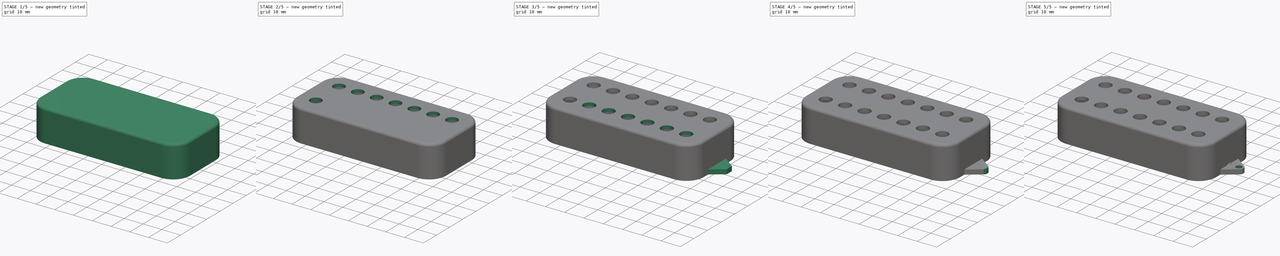
[diagram: build sequence overview — one tinted view per stage of 5, left to right]
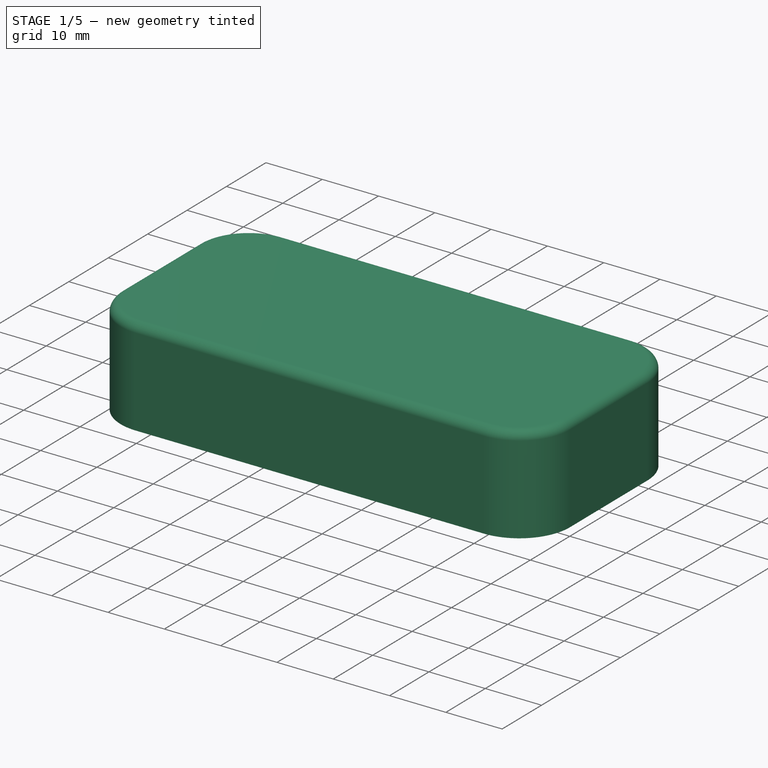
[diagram: stage 1 of 5 — iso view after this stage's code; geometry added in this stage tinted green]
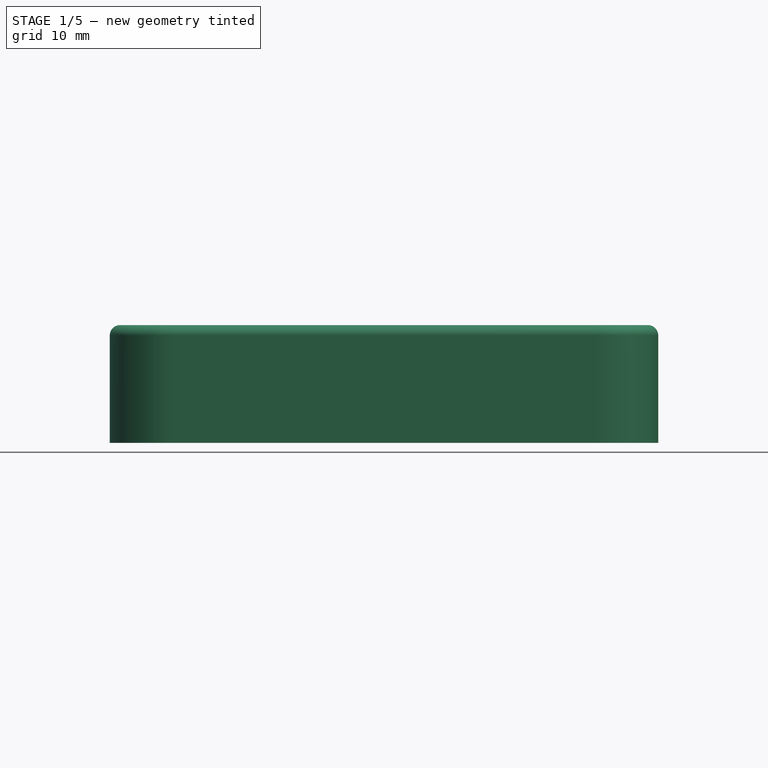
[diagram: stage 1 of 5 — front view after this stage's code; geometry added in this stage tinted green]
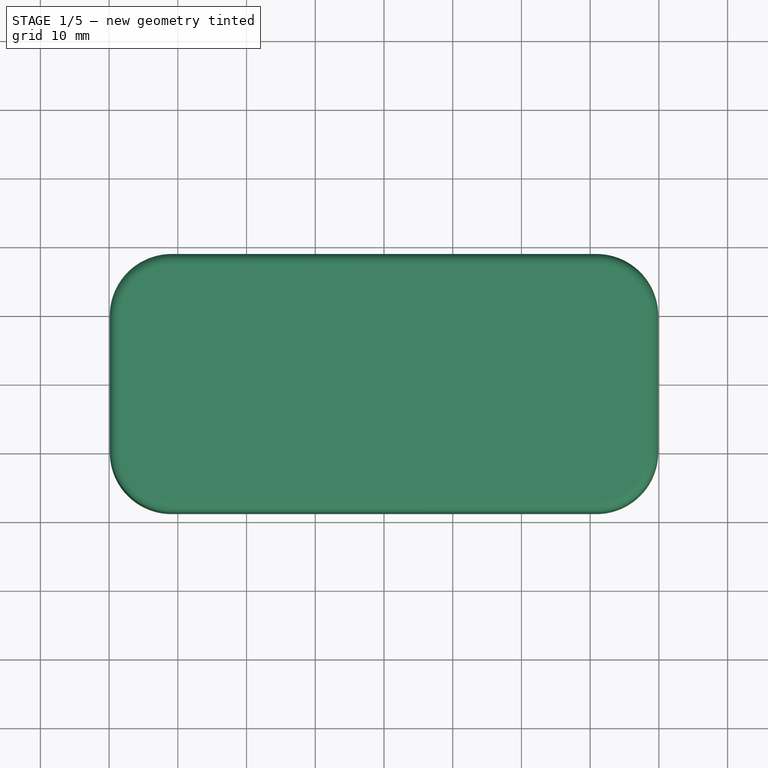
[diagram: stage 1 of 5 — top view after this stage's code; geometry added in this stage tinted green]
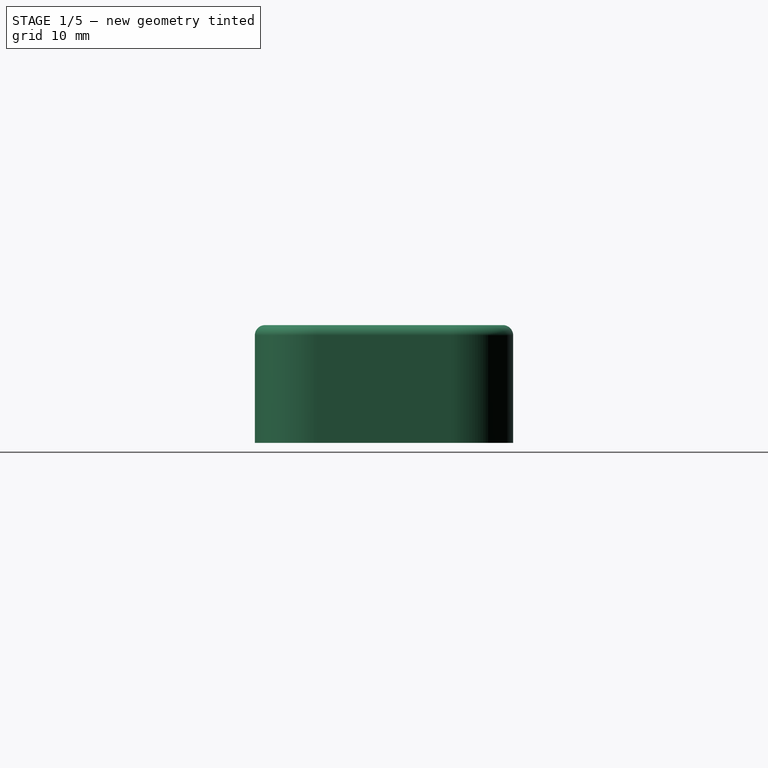
[diagram: stage 1 of 5 — right view after this stage's code; geometry added in this stage tinted green]
FCSTD DOCUMENT  (FreeCAD 0.19R24291 (Git))
Label: cover_humbucker_7strings_full_holed_Ibanez_RG_V2
License: Creative Commons 4.0 By
LicenseURL: https://github.com/RmX382/Humbucker-Cover-7/blob/main/Licence.md
objects: Sketcher::SketchObject×8, PartDesign::Mirrored×4, PartDesign::Pad×3, PartDesign::Pocket×2, PartDesign::Hole×2, PartDesign::LinearPattern×2, PartDesign::Fillet×1, PartDesign::Revolution×1, PartDesign::Body×1
note: 33 computed .brp shape members not serialized (recipe doc carries the construction recipe); baked Part::Feature solids carry a one-line shape summary decoded from their .brp

FEATURE [Sketcher::SketchObject] Sketch
  FullyConstrained = true
  MapMode = 5
  Support = -> [XY_Plane]
  sketch-geometry (8):
    g0: LineSegment StartX=-30.905 StartY=18.795 StartZ=0 EndX=30.905 EndY=18.795 EndZ=0
    g1: LineSegment StartX=39.905 StartY=9.795 StartZ=0 EndX=39.905 EndY=-9.795 EndZ=0
    g2: LineSegment StartX=30.905 StartY=-18.795 StartZ=0 EndX=-30.905 EndY=-18.795 EndZ=0
    g3: LineSegment StartX=-39.905 StartY=-9.795 StartZ=0 EndX=-39.905 EndY=9.795 EndZ=0
    g4: ArcOfCircle CenterX=-30.905 CenterY=9.795 CenterZ=0 NormalX=0 NormalY=0 NormalZ=1 AngleXU=0 Radius=9 StartAngle=1.5708 EndAngle=3.14159
    g5: ArcOfCircle CenterX=-30.905 CenterY=-9.795 CenterZ=0 NormalX=0 NormalY=0 NormalZ=1 AngleXU=0 Radius=9 StartAngle=3.14159 EndAngle=4.71239
    g6: ArcOfCircle CenterX=30.905 CenterY=-9.795 CenterZ=0 NormalX=0 NormalY=0 NormalZ=1 AngleXU=0 Radius=9 StartAngle=4.71239 EndAngle=6.28319
    g7: ArcOfCircle CenterX=30.905 CenterY=9.795 CenterZ=0 NormalX=0 NormalY=0 NormalZ=1 AngleXU=0 Radius=9 StartAngle=0 EndAngle=1.5708
  constraints (18):
    c: Horizontal(g2)
    c: Vertical(g1)
    c: Tangent(g0,g4) = 1.5708
    c: Tangent(g3,g4) = 1.5708
    c: Tangent(g2,g5) = 1.5708
    c: Tangent(g3,g5) = 1.5708
    c: Tangent(g1,g6) = 1.5708
    c: Tangent(g2,g6) = 1.5708
    c: Tangent(g0,g7) = 1.5708
    c: Tangent(g1,g7) = 1.5708
    c: Radius(g4) = 9
    c: Radius(g5) = 9
    c: Radius(g6) = 9
    c: Radius(g7) = 9
    c: DistanceY(g2,g0) = 37.59
    c: DistanceX(g3,g1) = 79.81
    c: Symmetric(g3,g3,g-1)
    c: Symmetric(g0,g0,g-2)
FEATURE [PartDesign::Pad] Pad
  Direction = (1,1,1)
  Length = 17.15
  Length2 = 100
  Profile = -> Sketch
  Type = 0
FEATURE [Sketcher::SketchObject] Sketch001
  ExternalGeometry = -> [Pad]
  FullyConstrained = true
  MapMode = 5
  Placement = pos=(0,0,0) rot=(1,0,0;3.14159rad)
  Support = -> [Pad]
  sketch-geometry (8):
    g0: LineSegment StartX=-30.395 StartY=18.29 StartZ=0 EndX=30.395 EndY=18.29 EndZ=0
    g1: LineSegment StartX=39.395 StartY=9.29 StartZ=0 EndX=39.395 EndY=-9.29 EndZ=0
    g2: LineSegment StartX=30.395 StartY=-18.29 StartZ=0 EndX=-30.395 EndY=-18.29 EndZ=0
    g3: LineSegment StartX=-39.395 StartY=-9.29 StartZ=0 EndX=-39.395 EndY=9.29 EndZ=0
    g4: ArcOfCircle CenterX=-30.395 CenterY=9.29 CenterZ=0 NormalX=0 NormalY=0 NormalZ=1 AngleXU=0 Radius=9 StartAngle=1.5708 EndAngle=3.14159
    g5: ArcOfCircle CenterX=-30.395 CenterY=-9.29 CenterZ=0 NormalX=0 NormalY=0 NormalZ=1 AngleXU=0 Radius=9 StartAngle=3.14159 EndAngle=4.71239
    g6: ArcOfCircle CenterX=30.395 CenterY=-9.29 CenterZ=0 NormalX=0 NormalY=0 NormalZ=1 AngleXU=0 Radius=9 StartAngle=4.71239 EndAngle=6.28319
    g7: ArcOfCircle CenterX=30.395 CenterY=9.29 CenterZ=0 NormalX=0 NormalY=0 NormalZ=1 AngleXU=0 Radius=9 StartAngle=-6.413e-13 EndAngle=1.5708
  constraints (20):
    c: Horizontal(g0)
    c: Horizontal(g2)
    c: Vertical(g1)
    c: Vertical(g3)
    c: Tangent(g0,g4) = 1.5708
    c: Tangent(g3,g4) = 1.5708
    c: Tangent(g2,g5) = 1.5708
    c: Tangent(g3,g5) = 1.5708
    c: Tangent(g1,g6) = 1.5708
    c: Tangent(g2,g6) = 1.5708
    c: Tangent(g0,g7) = 1.5708
    c: Tangent(g1,g7) = 1.5708
    c: Radius(g4) = 9
    c: Radius(g5) = 9
    c: Radius(g6) = 9
    c: Radius(g7) = 9
    c: DistanceX(g-5,g3) = 0.51
    c: DistanceX(g1,g-6) = 0.51
    c: DistanceY(g0,g-3) = 0.505
    c: DistanceY(g-4,g2) = 0.505
FEATURE [PartDesign::Pocket] Pocket
  BaseFeature = -> Pad
  Length = 15.51
  Length2 = 100
  Profile = -> Sketch001
  Type = 0
FEATURE [PartDesign::Fillet] Fillet
  Base = -> Pocket [Face5]
  BaseFeature = -> Pocket
  Radius = 1.5
  SupportTransform = false
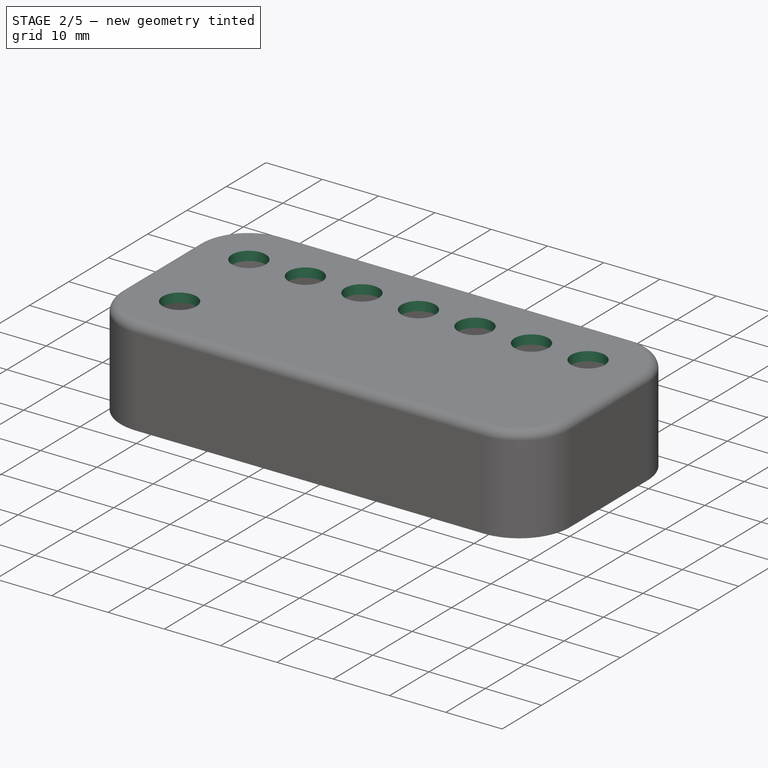
[diagram: stage 2 of 5 — iso view after this stage's code; geometry added in this stage tinted green]
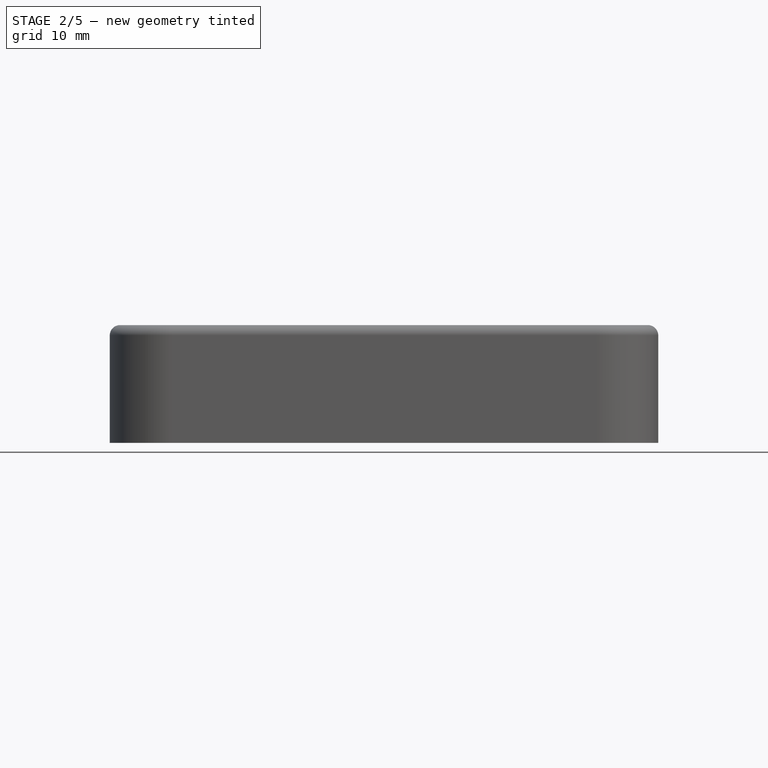
[diagram: stage 2 of 5 — front view after this stage's code; geometry added in this stage tinted green]
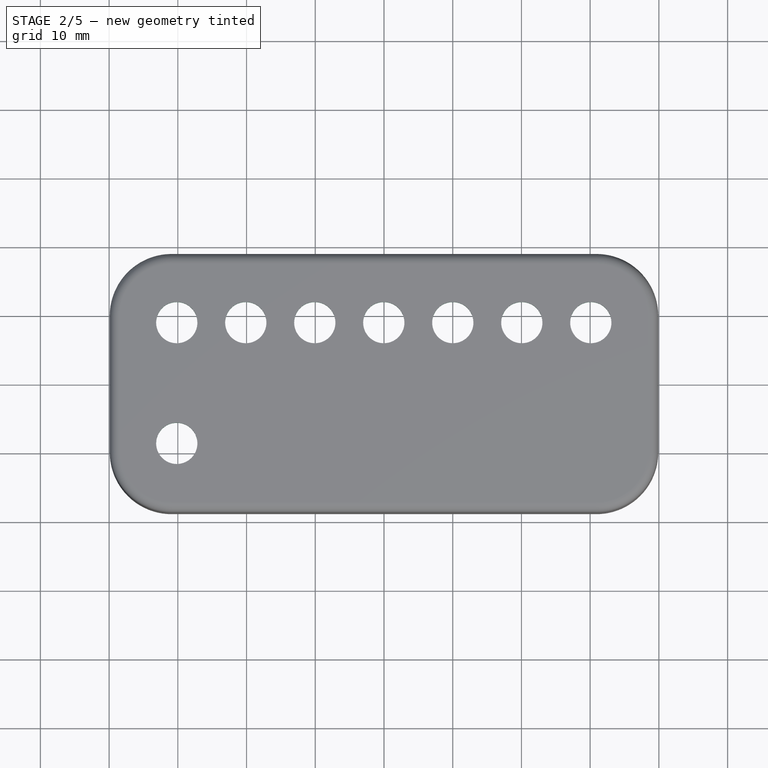
[diagram: stage 2 of 5 — top view after this stage's code; geometry added in this stage tinted green]
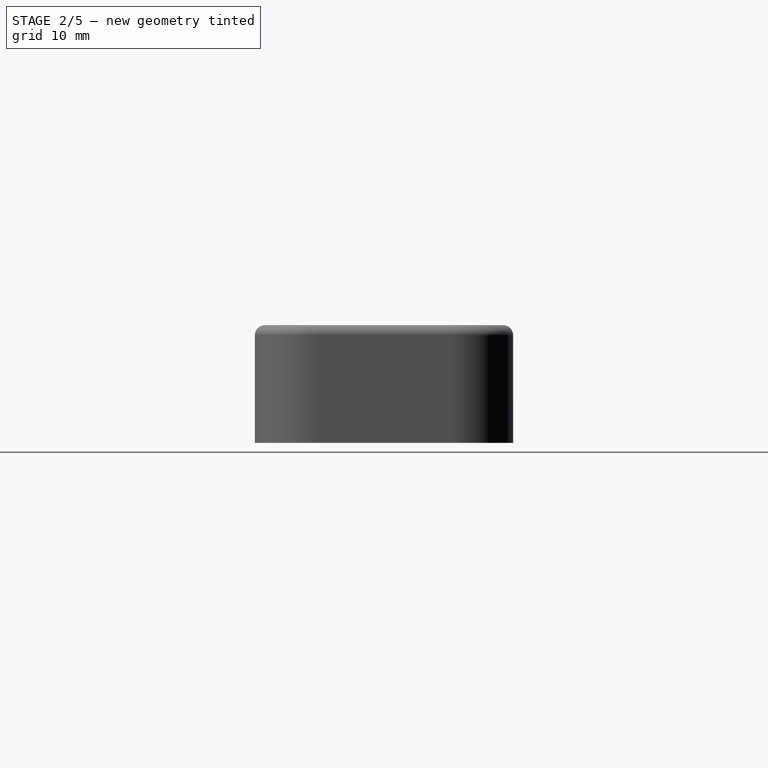
[diagram: stage 2 of 5 — right view after this stage's code; geometry added in this stage tinted green]
FEATURE [Sketcher::SketchObject] Sketch002
  ExternalGeometry = -> [Fillet]
  FullyConstrained = true
  MapMode = 5
  Placement = pos=(0,0,17.15) rot=(0,0,1;0rad)
  Support = -> [Fillet]
  sketch-geometry (1):
    g0: Circle CenterX=-30.155 CenterY=8.7875 CenterZ=0 NormalX=0 NormalY=0 NormalZ=1 AngleXU=0 Radius=2.59
  constraints (3):
    c: Distance(g0,g-1) = 8.7875
    c: Distance(g0,g-3) = 9.75
    c: Radius(g0) = 2.59
FEATURE [PartDesign::Hole] Hole
  BaseFeature = -> Fillet
  Depth = 25
  DepthType = 0
  Diameter = 6
  DrillForDepth = false
  DrillPoint = 1
  DrillPointAngle = 118
  HoleCutCountersinkAngle = 90
  HoleCutCustomValues = false
  HoleCutDepth = 0
  HoleCutDiameter = 6.1
  HoleCutType = 0
  ModelActualThread = false
  Profile = -> Sketch002
  Tapered = false
  TaperedAngle = 90
  ThreadAngle = 0
  ThreadClass = 0
  ThreadCutOffInner = 0
  ThreadCutOffOuter = 0
  ThreadDirection = 0
  ThreadFit = 0
  ThreadPitch = 0
  ThreadSize = 0
  ThreadType = 0
  Threaded = false
FEATURE [PartDesign::LinearPattern] LinearPattern
  BaseFeature = -> Hole
  Direction = -> Sketch002 [H_Axis]
  Length = 60.25
  Occurrences = 7
  Originals = -> [Hole]
FEATURE [Sketcher::SketchObject] Sketch003
  ExternalGeometry = -> [LinearPattern]
  FullyConstrained = true
  MapMode = 5
  Placement = pos=(0,0,17.15) rot=(0,0,1;0rad)
  Support = -> [LinearPattern]
  sketch-geometry (1):
    g0: Circle CenterX=-30.155 CenterY=-8.7875 CenterZ=0 NormalX=0 NormalY=0 NormalZ=1 AngleXU=0 Radius=2.59
  constraints (3):
    c: Radius(g0) = 2.59
    c: Distance(g0,g-1) = 8.7875
    c: Distance(g0,g-3) = 9.75
FEATURE [PartDesign::Hole] Hole001
  BaseFeature = -> LinearPattern
  Depth = 25
  DepthType = 0
  Diameter = 6
  DrillForDepth = false
  DrillPoint = 1
  DrillPointAngle = 118
  HoleCutCountersinkAngle = 90
  HoleCutCustomValues = false
  HoleCutDepth = 0
  HoleCutDiameter = 6.1
  HoleCutType = 0
  ModelActualThread = false
  Profile = -> Sketch003
  Tapered = false
  TaperedAngle = 90
  ThreadAngle = 0
  ThreadClass = 0
  ThreadCutOffInner = 0
  ThreadCutOffOuter = 0
  ThreadDirection = 0
  ThreadFit = 0
  ThreadPitch = 0
  ThreadSize = 0
  ThreadType = 0
  Threaded = false
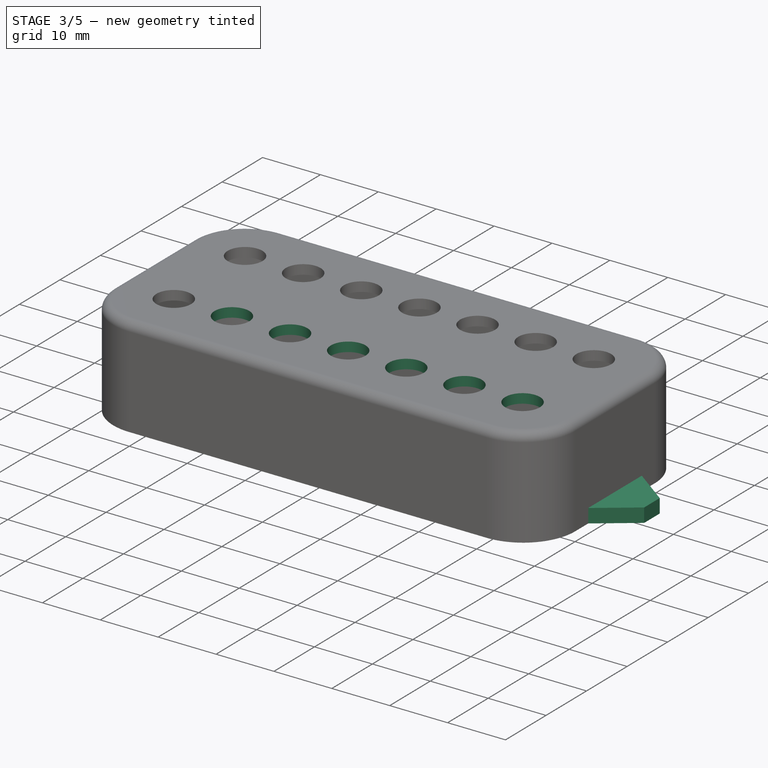
[diagram: stage 3 of 5 — iso view after this stage's code; geometry added in this stage tinted green]
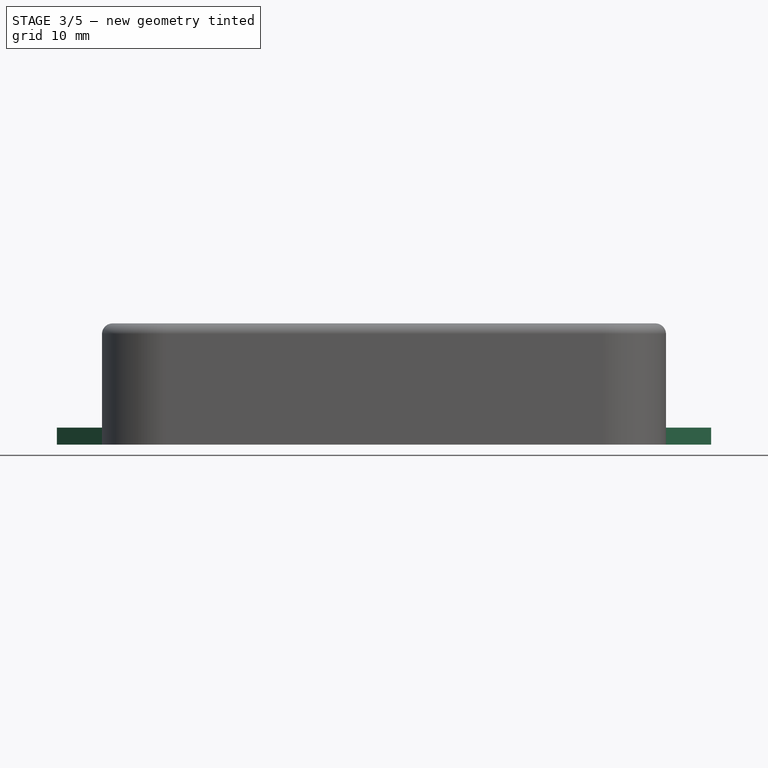
[diagram: stage 3 of 5 — front view after this stage's code; geometry added in this stage tinted green]
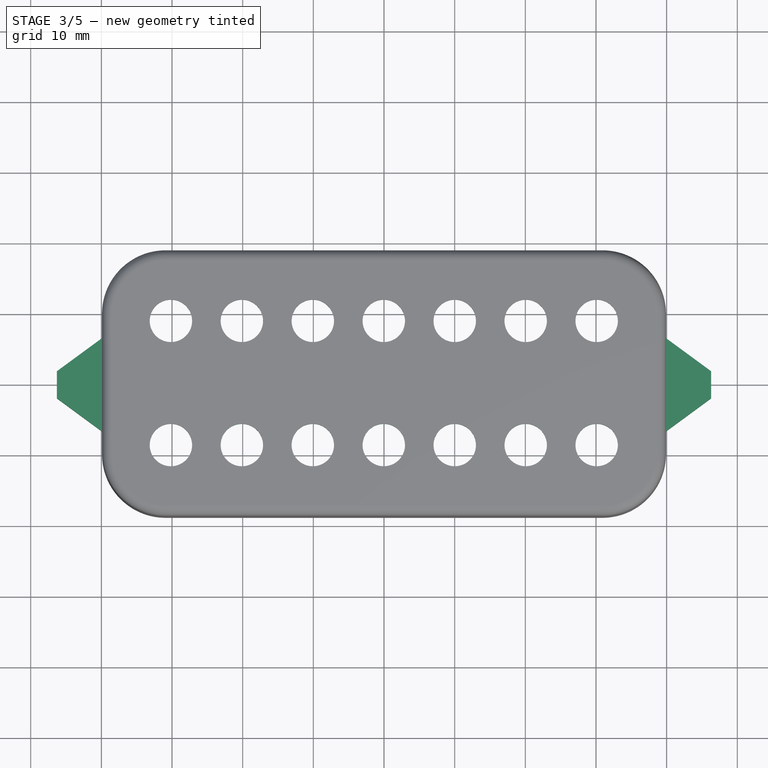
[diagram: stage 3 of 5 — top view after this stage's code; geometry added in this stage tinted green]
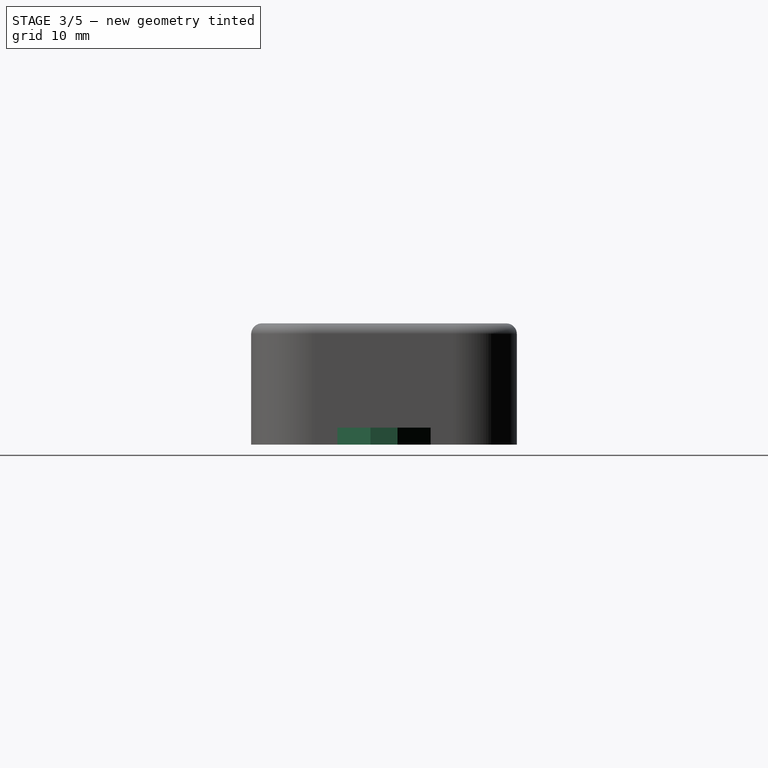
[diagram: stage 3 of 5 — right view after this stage's code; geometry added in this stage tinted green]
FEATURE [PartDesign::LinearPattern] LinearPattern001
  BaseFeature = -> Hole001
  Direction = -> Sketch003 [H_Axis]
  Length = 60.25
  Occurrences = 7
  Originals = -> [Hole001]
FEATURE [Sketcher::SketchObject] Sketch004
  ExternalGeometry = -> [LinearPattern001]
  FullyConstrained = false
  MapMode = 5
  Support = -> [XY_Plane]
  sketch-geometry (4):
    g0: LineSegment StartX=39.905 StartY=6.605 StartZ=0 EndX=39.905 EndY=-6.605 EndZ=0
    g1: LineSegment StartX=39.905 StartY=6.605 StartZ=0 EndX=46.2885 EndY=1.91848 EndZ=0
    g2: LineSegment StartX=39.905 StartY=-6.605 StartZ=0 EndX=46.2885 EndY=-1.91848 EndZ=0
    g3: LineSegment StartX=46.2885 StartY=1.91848 StartZ=0 EndX=46.2885 EndY=-1.91848 EndZ=0
  constraints (7):
    c: PointOnObject(g0,g-3)
    c: Distance(g0) = 13.21
    c: Symmetric(g0,g0,g-1)
    c: Coincident(g1,g0)
    c: Coincident(g2,g0)
    c: Coincident(g3,g1)
    c: Coincident(g3,g2)
FEATURE [PartDesign::Pad] Pad001
  BaseFeature = -> LinearPattern001
  Direction = (1,1,1)
  Length = 2.41
  Length2 = 100
  Profile = -> Sketch004
  Type = 0
FEATURE [PartDesign::Mirrored] Mirrored
  BaseFeature = -> Pad001
  MirrorPlane = -> Sketch004 [V_Axis]
  Originals = -> [Pad001]
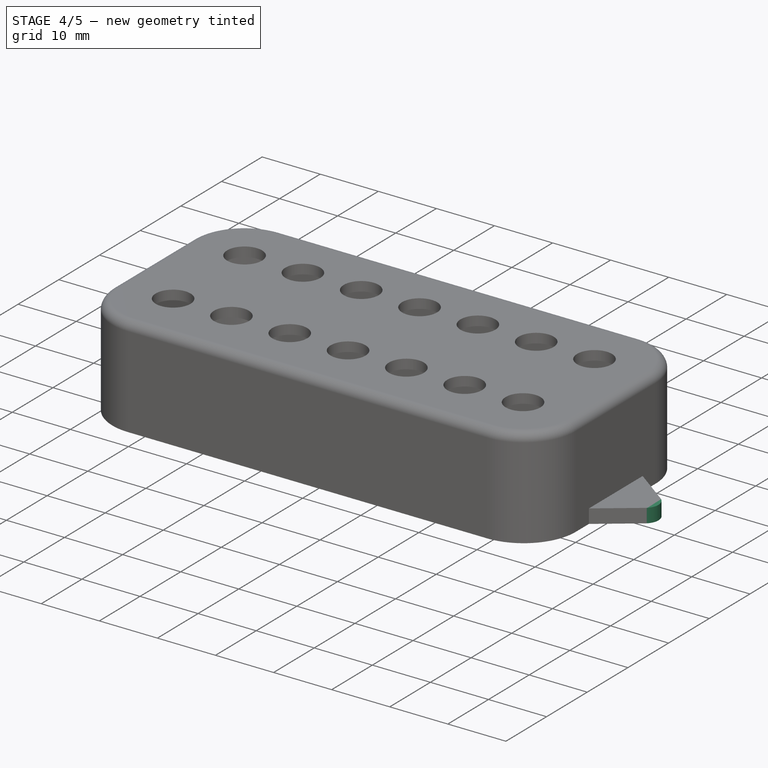
[diagram: stage 4 of 5 — iso view after this stage's code; geometry added in this stage tinted green]
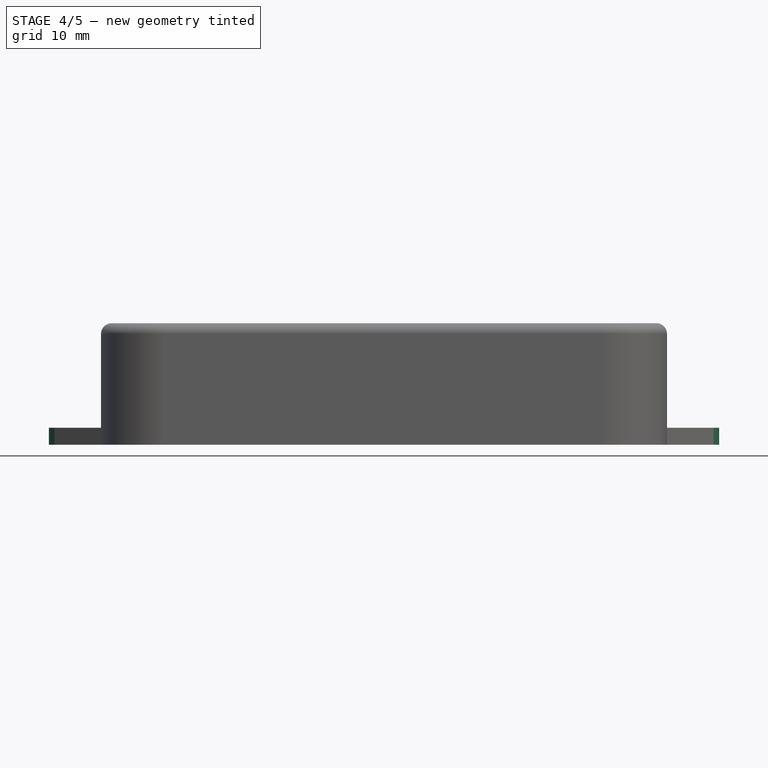
[diagram: stage 4 of 5 — front view after this stage's code; geometry added in this stage tinted green]
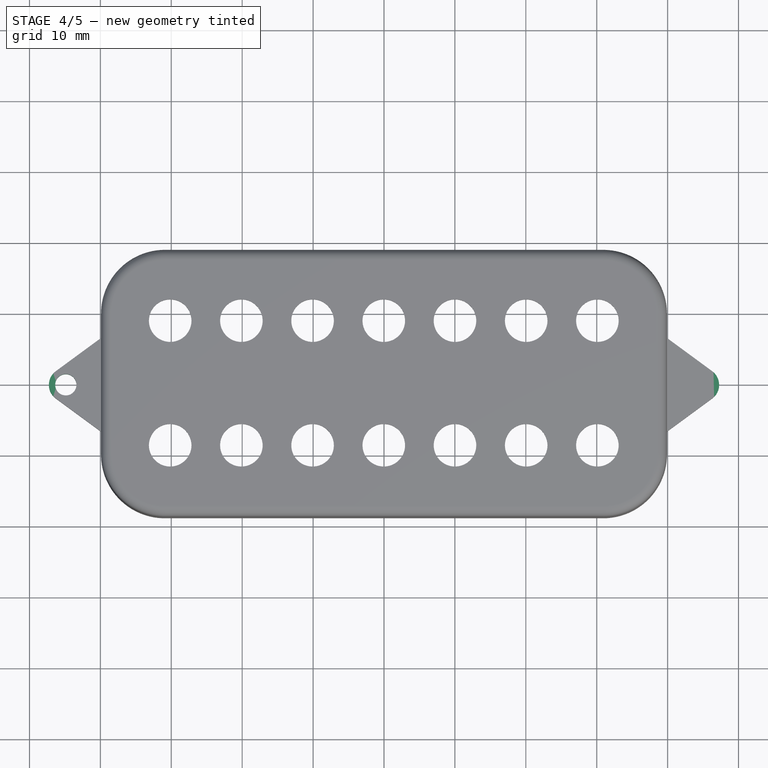
[diagram: stage 4 of 5 — top view after this stage's code; geometry added in this stage tinted green]
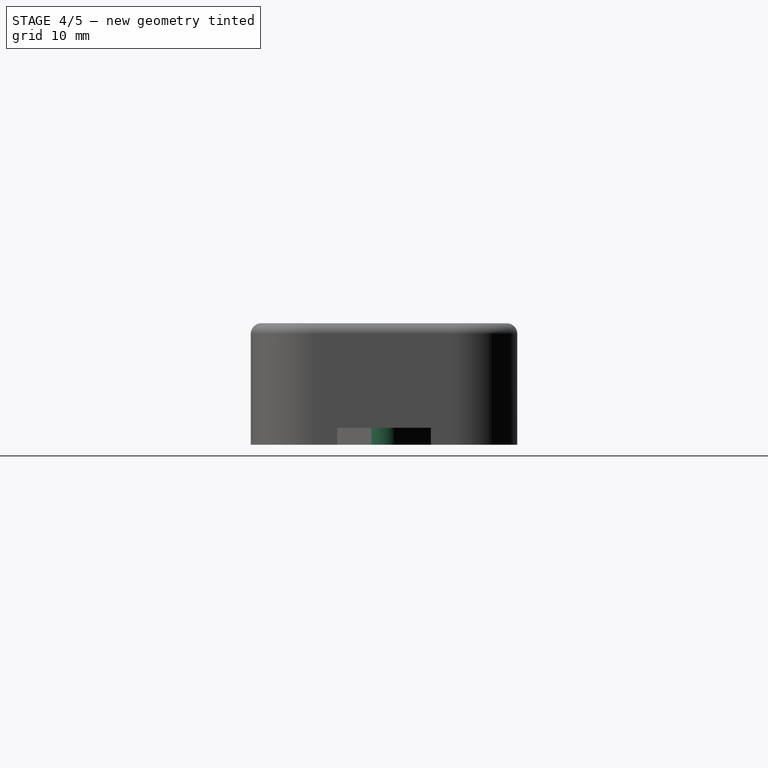
[diagram: stage 4 of 5 — right view after this stage's code; geometry added in this stage tinted green]
FEATURE [Sketcher::SketchObject] Sketch005
  ExternalGeometry = -> [Mirrored]
  FullyConstrained = true
  MapMode = 5
  Support = -> [XY_Plane]
  sketch-geometry (1):
    g0: Circle CenterX=-44.88 CenterY=0 CenterZ=0 NormalX=0 NormalY=0 NormalZ=1 AngleXU=0 Radius=2.38
  constraints (3):
    c: PointOnObject(g0,g-1)
    c: Radius(g0) = 2.38
    c: Distance(g0,g-3) = 4.975
FEATURE [PartDesign::Pad] Pad002
  BaseFeature = -> Mirrored
  Direction = (1,1,1)
  Length = 2.41
  Length2 = 100
  Profile = -> Sketch005
  Type = 0
FEATURE [PartDesign::Mirrored] Mirrored001
  BaseFeature = -> Pad002
  MirrorPlane = -> Sketch005 [V_Axis]
  Originals = -> [Pad002]
FEATURE [Sketcher::SketchObject] Sketch006
  ExternalGeometry = -> [Mirrored001]
  FullyConstrained = true
  MapMode = 5
  Support = -> [XY_Plane]
  sketch-geometry (1):
    g0: Circle CenterX=-44.875 CenterY=0 CenterZ=0 NormalX=0 NormalY=0 NormalZ=1 AngleXU=0 Radius=1.5
  constraints (3):
    c: PointOnObject(g0,g-1)
    c: Radius(g0) = 1.5
    c: Distance(g0,g-3) = 4.97
FEATURE [PartDesign::Pocket] Pocket001
  BaseFeature = -> Mirrored001
  Length = 5
  Length2 = 100
  Profile = -> Sketch006
  Reversed = true
  Type = 1
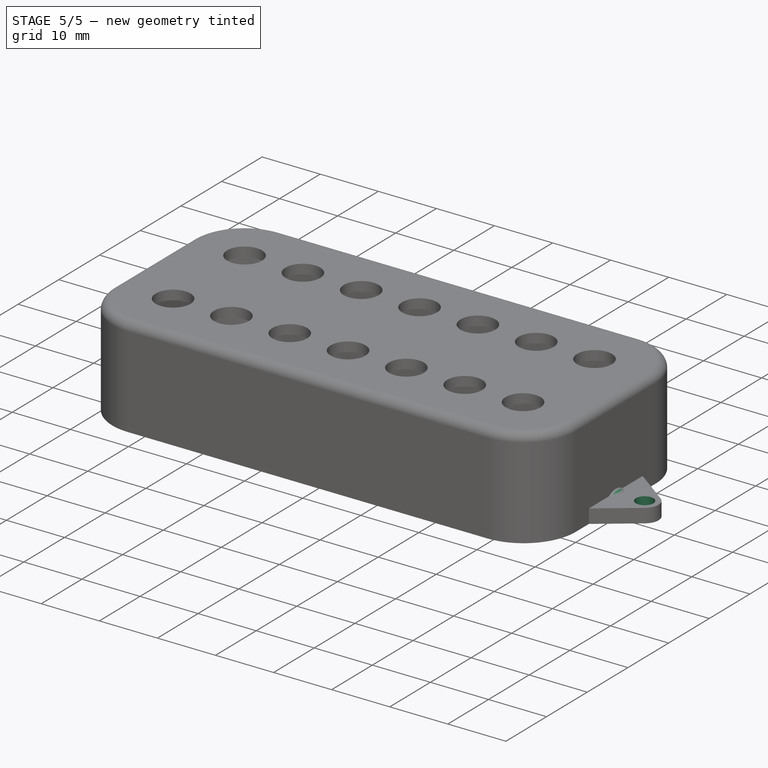
[diagram: stage 5 of 5 — iso view after this stage's code; geometry added in this stage tinted green]
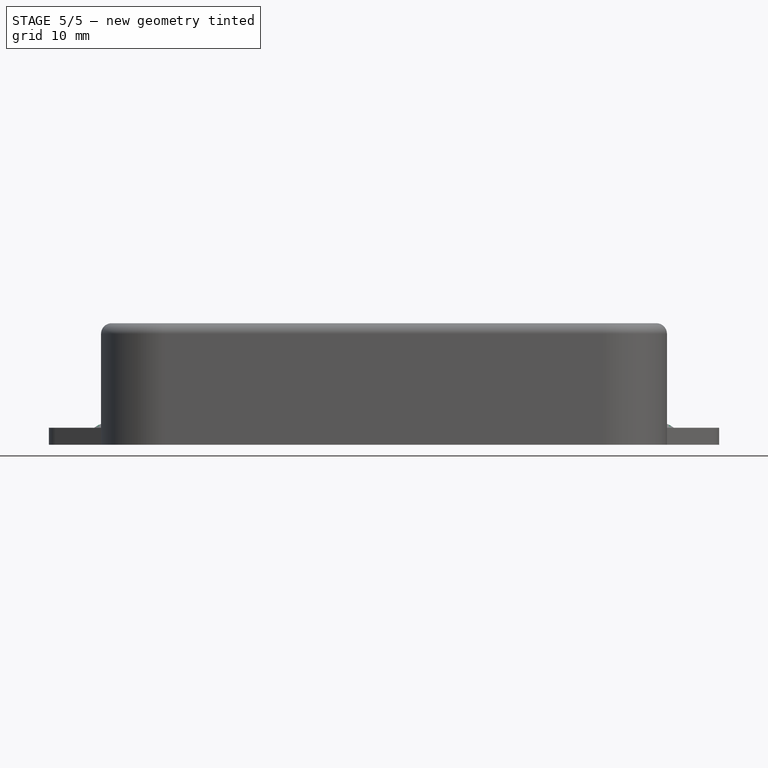
[diagram: stage 5 of 5 — front view after this stage's code; geometry added in this stage tinted green]
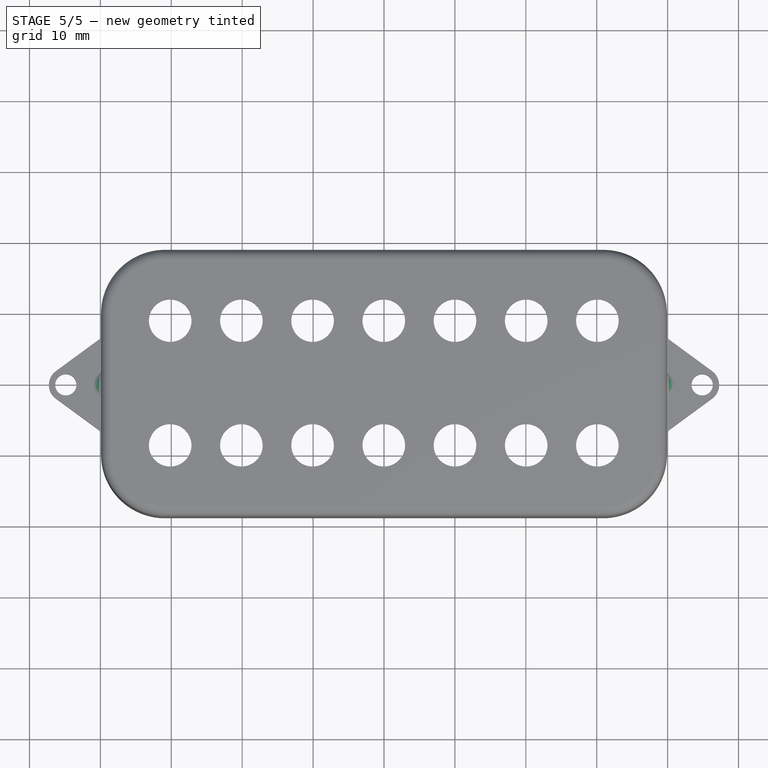
[diagram: stage 5 of 5 — top view after this stage's code; geometry added in this stage tinted green]
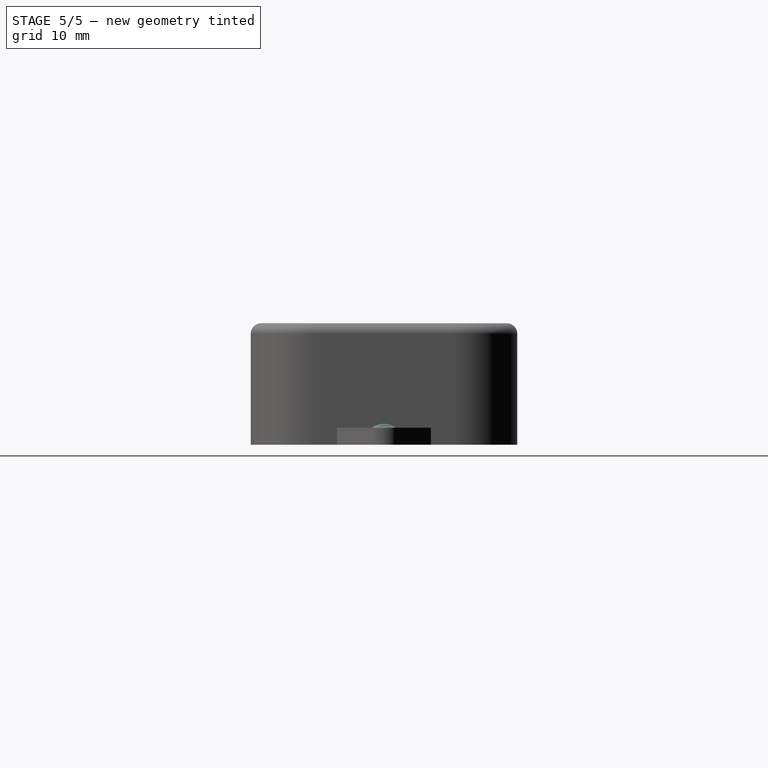
[diagram: stage 5 of 5 — right view after this stage's code; geometry added in this stage tinted green]
FEATURE [PartDesign::Mirrored] Mirrored002
  BaseFeature = -> Pocket001
  MirrorPlane = -> Sketch006 [V_Axis]
  Originals = -> [Pocket001]
FEATURE [Sketcher::SketchObject] Sketch007
  ExternalGeometry = -> [Mirrored002]
  FullyConstrained = false
  MapMode = 5
  Placement = pos=(0,0,2.41) rot=(0,0,1;0rad)
  Support = -> [Mirrored002]
  sketch-geometry (3):
    g0: LineSegment StartX=-39.905 StartY=1.6993 StartZ=0 EndX=-39.905 EndY=2e-16 EndZ=0
    g1: LineSegment StartX=-39.905 StartY=3e-16 StartZ=0 EndX=-40.8631 EndY=3e-16 EndZ=0
    g2: ArcOfCircle CenterX=-38.8319 CenterY=-0.025468 CenterZ=0 NormalX=0 NormalY=0 NormalZ=1 AngleXU=0 Radius=2.03137 StartAngle=2.12738 EndAngle=3.12905
  constraints (7):
    c: PointOnObject(g0,g-3)
    c: PointOnObject(g0,g-3)
    c: Coincident(g1,g0)
    c: PointOnObject(g1,g-1)
    c: Horizontal(g1)
    c: Coincident(g2,g0)
    c: Coincident(g2,g1)
FEATURE [PartDesign::Revolution] Revolution
  Angle = 90
  Axis = (1,0,0)
  Base = (0,0,0)
  BaseFeature = -> Mirrored002
  Profile = -> Sketch007
  ReferenceAxis = -> X_Axis
FEATURE [PartDesign::Mirrored] Mirrored003
  BaseFeature = -> Revolution
  MirrorPlane = -> Sketch007 [V_Axis]
  Originals = -> [Revolution]
FEATURE [PartDesign::Body] Body
  Group = -> [Sketch,Pad,Sketch001,Pocket,Fillet,Sketch002,Hole,LinearPattern,Sketch003,Hole001,LinearPattern001,Sketch004,Pad001,Mirrored,Sketch005,Pad002,Mirrored001,Sketch006,Pocket001,Mirrored002,Sketch007,Revolution,Mirrored003]
  Origin = -> Origin
  Tip = -> Mirrored003
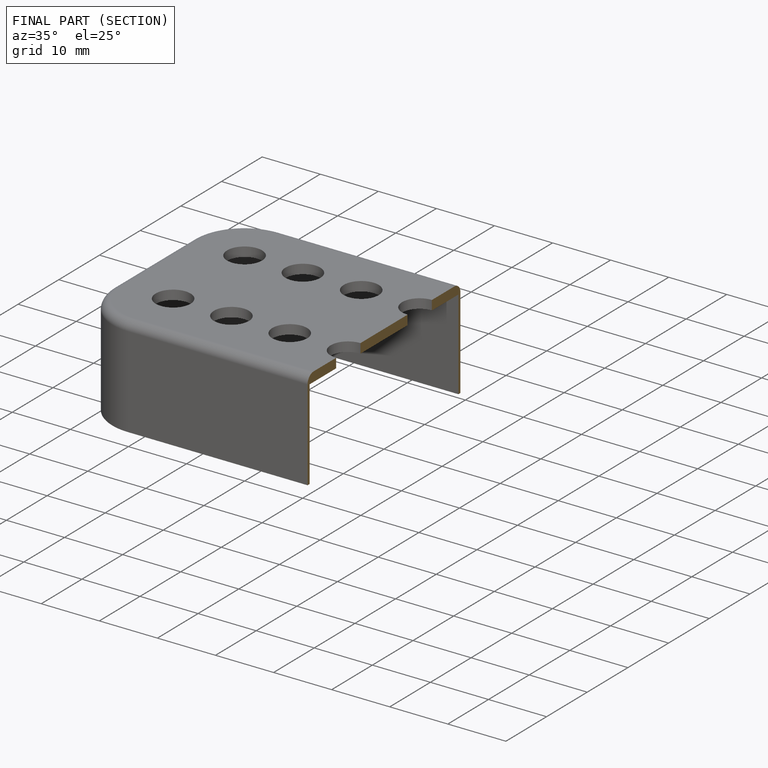
[diagram: finished part — half-section view (interior)]
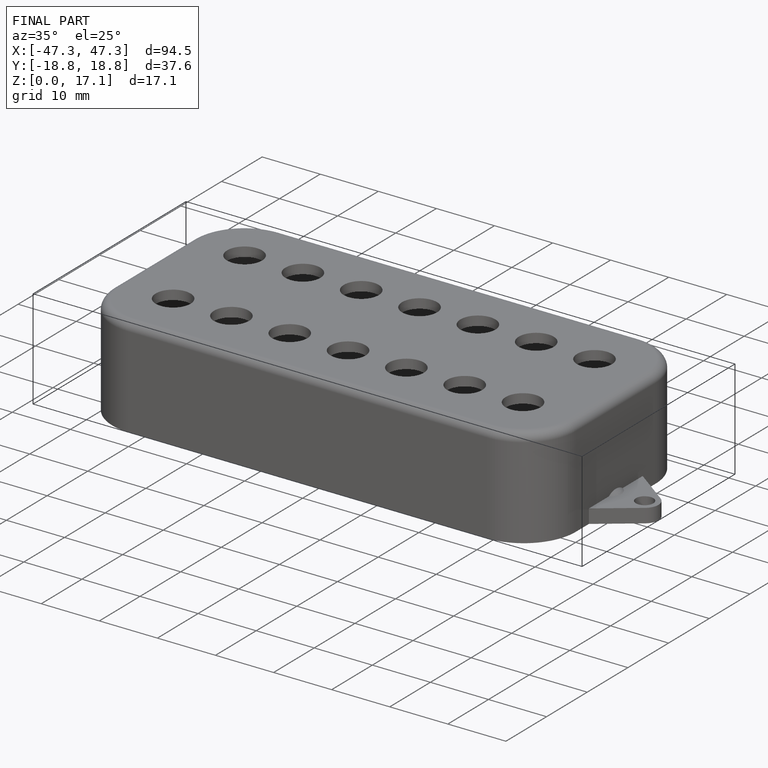
[diagram: finished part — iso view with bounding-box wireframe]
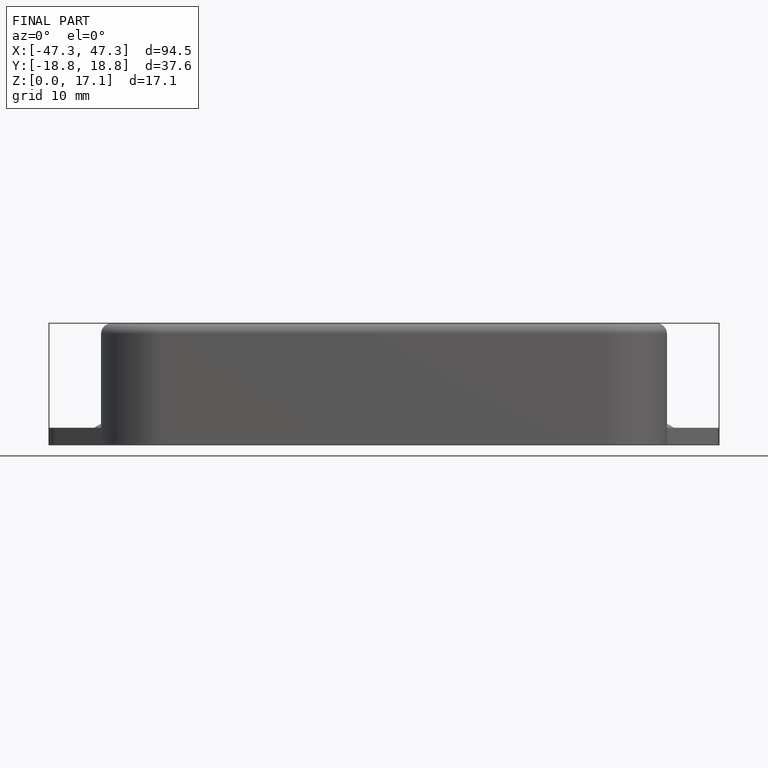
[diagram: finished part — front view with bounding-box wireframe]
